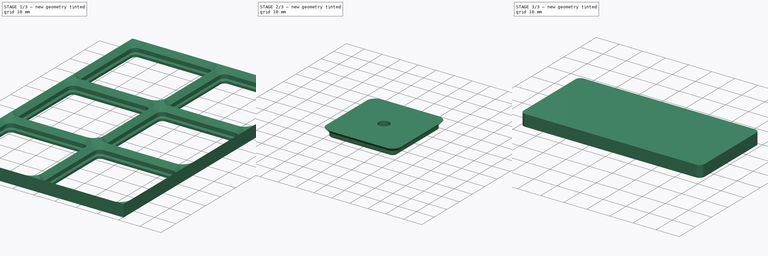
[diagram: build sequence overview — one tinted view per stage of 3, left to right]
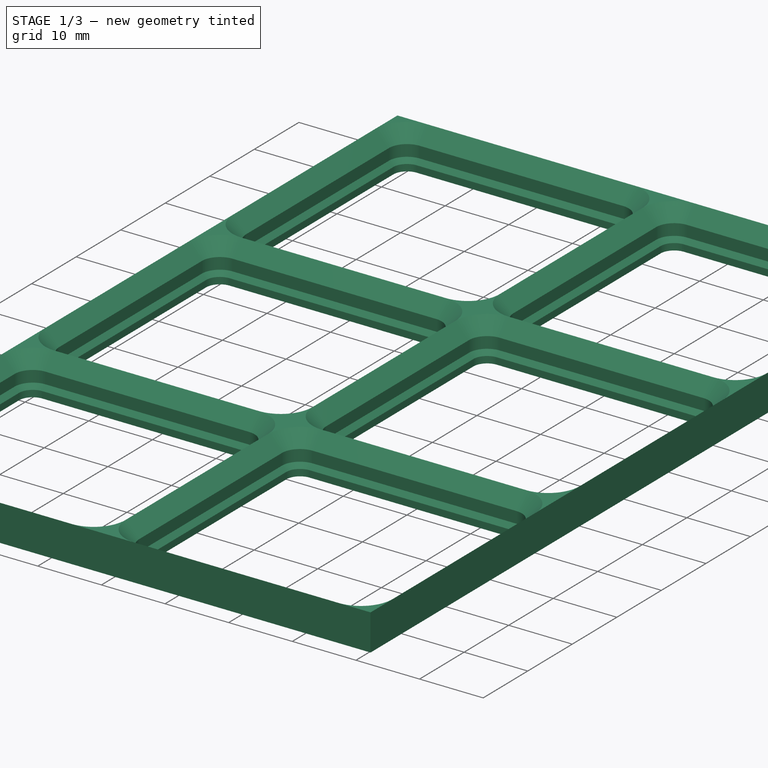
[diagram: stage 1 of 3 — iso view after this stage's code; geometry added in this stage tinted green]
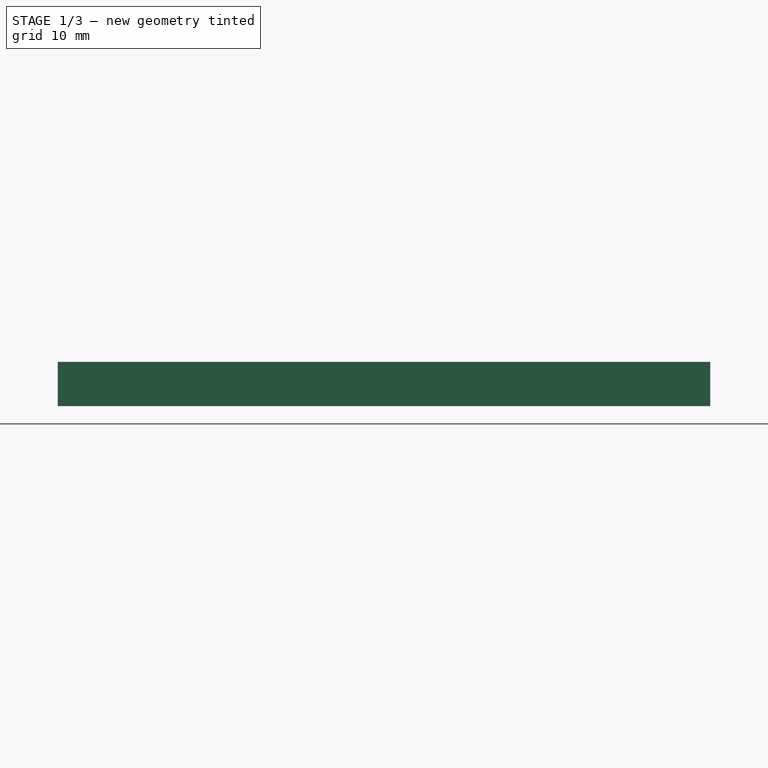
[diagram: stage 1 of 3 — front view after this stage's code; geometry added in this stage tinted green]
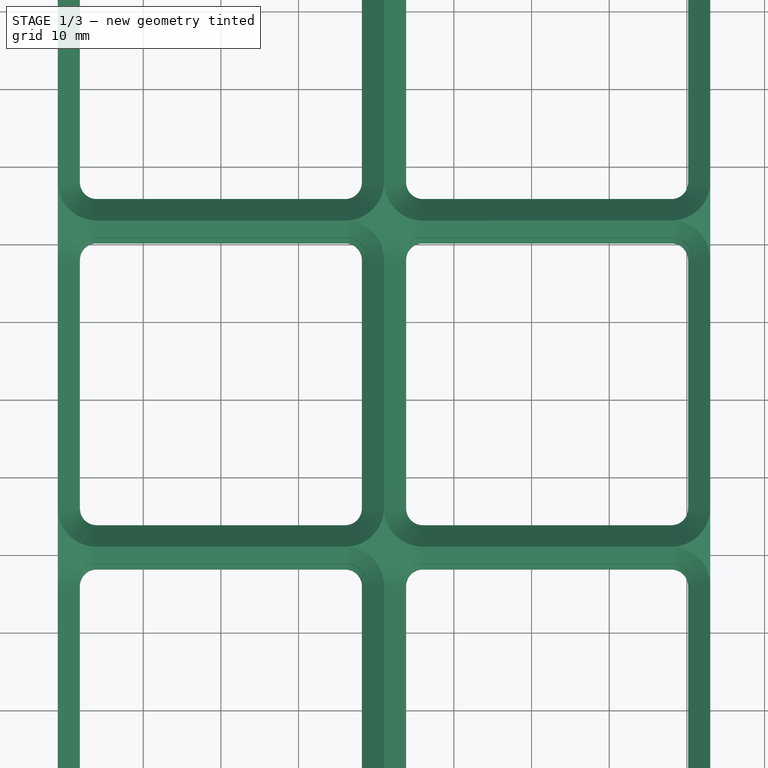
[diagram: stage 1 of 3 — top view after this stage's code; geometry added in this stage tinted green]
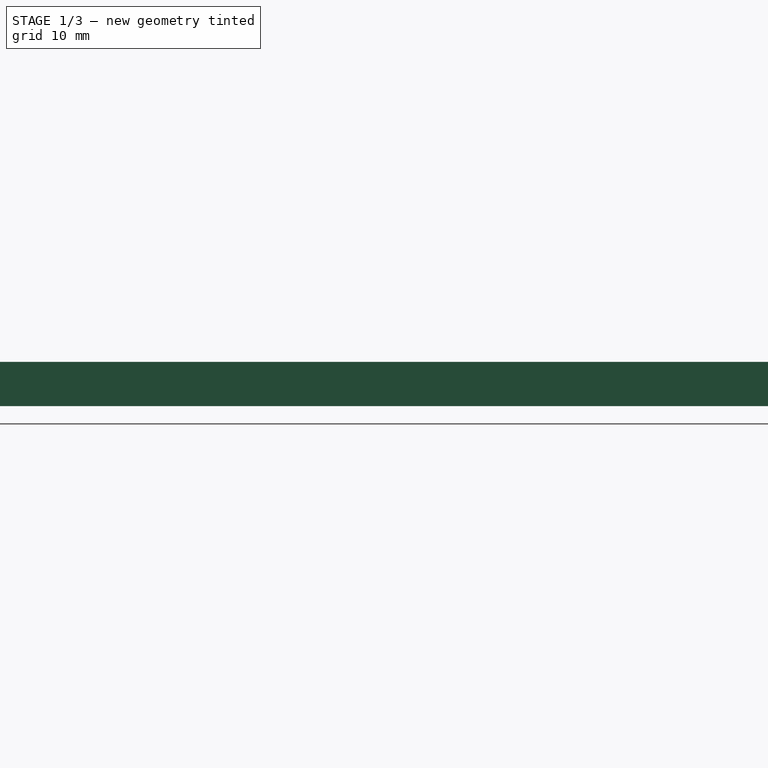
[diagram: stage 1 of 3 — right view after this stage's code; geometry added in this stage tinted green]
FCSTD DOCUMENT  (FreeCAD 1.0R38806 (Git))
Label: Test32
License: All rights reserved
LicenseURL: http://en.wikipedia.org/wiki/All_rights_reserved
objects: Sketcher::SketchObject×9, PartDesign::SubShapeBinder×6, PartDesign::LinearPattern×4, PartDesign::Body×4, PartDesign::Pad×3, PartDesign::MultiTransform×2, PartDesign::AdditivePipe×2, App::VarSet×1, PartDesign::SubtractivePipe×1, App::Part×1
note: 58 computed .brp shape members not serialized (recipe doc carries the construction recipe); baked Part::Feature solids carry a one-line shape summary decoded from their .brp

FEATURE [App::VarSet] VarSet
FEATURE [Sketcher::SketchObject] Sketch
  ArcFitTolerance = 1e-06
  AttachmentSupport = -> [XZ_Plane001]
  FullyConstrained = true
  MakeInternals = false
  MapMode = 5
  Placement = pos=(0,0,0) rot=(1,0,0;1.5708rad)
  sketch-geometry (5):
    g0: LineSegment StartX=-21 StartY=0 StartZ=0 EndX=-18.85 EndY=-2.15 EndZ=0
    g1: LineSegment StartX=-18.85 StartY=-2.15 StartZ=0 EndX=-18.85 EndY=-3.95 EndZ=0
    g2: LineSegment StartX=-18.85 StartY=-3.95 StartZ=0 EndX=-18.15 EndY=-4.65 EndZ=0
    g3: LineSegment StartX=-18.15 StartY=-4.65 StartZ=0 EndX=-18.15 EndY=0 EndZ=0
    g4: LineSegment StartX=-18.15 StartY=0 StartZ=0 EndX=-21 EndY=0 EndZ=0
  constraints (16):
    c: Coincident(g0,g1)
    c: Vertical(g1)
    c: Coincident(g1,g2)
    c: Coincident(g2,g3)
    c: Vertical(g3)
    c: Coincident(g3,g4)
    c: Coincident(g4,g0)
    c: Horizontal(g4)
    c: Parallel(g0,g2)
    c: Angle(g0,g4) = 0.785398
    c: DistanceY(g0,g0) = 2.15
    c: DistanceY(g1,g0) = 1.8
    c: DistanceY(g2,g1) = 0.7
    c: DistanceX(g0,g-1) = 21
    c: PointOnObject(g0,g-1)
    c: DistanceY(g2,g3) = 4.65
FEATURE [Sketcher::SketchObject] Sketch001
  ArcFitTolerance = 1e-06
  AttachmentSupport = -> [XY_Plane001]
  ExternalGeometry = -> [Sketch]
  FullyConstrained = true
  MakeInternals = false
  MapMode = 5
  sketch-geometry (10):
    g0: LineSegment StartX=-16 StartY=-21 StartZ=0 EndX=16 EndY=-21 EndZ=0
    g1: LineSegment StartX=21 StartY=-16 StartZ=0 EndX=21 EndY=16 EndZ=0
    g2: LineSegment StartX=16 StartY=21 StartZ=0 EndX=-16 EndY=21 EndZ=0
    g3: LineSegment StartX=-21 StartY=16 StartZ=0 EndX=-21 EndY=-16 EndZ=0
    g4: ArcOfCircle CenterX=-16 CenterY=-16 CenterZ=0 NormalX=0 NormalY=0 NormalZ=1 AngleXU=0 Radius=5 StartAngle=3.14159 EndAngle=4.71239
    g5: ArcOfCircle CenterX=16 CenterY=-16 CenterZ=0 NormalX=0 NormalY=0 NormalZ=1 AngleXU=0 Radius=5 StartAngle=4.71239 EndAngle=6.28319
    g6: ArcOfCircle CenterX=16 CenterY=16 CenterZ=0 NormalX=0 NormalY=0 NormalZ=1 AngleXU=0 Radius=5 StartAngle=0 EndAngle=1.5708
    g7: ArcOfCircle CenterX=-16 CenterY=16 CenterZ=0 NormalX=0 NormalY=0 NormalZ=1 AngleXU=0 Radius=5 StartAngle=1.5708 EndAngle=3.14159
    g8: GeomPoint [constr] X=21 Y=21 Z=0
    g9: GeomPoint [constr] X=0 Y=0 Z=0
  constraints (22):
    c: Tangent(g0,g4) = -1.5708
    c: Tangent(g0,g5) = -1.5708
    c: Tangent(g1,g5) = -1.5708
    c: Tangent(g1,g6) = -1.5708
    c: Tangent(g2,g6) = -1.5708
    c: Tangent(g2,g7) = -1.5708
    c: Tangent(g3,g7) = -1.5708
    c: Tangent(g3,g4) = -1.5708
    c: Horizontal(g0)
    c: Horizontal(g2)
    c: Vertical(g1)
    c: Vertical(g3)
    c: Equal(g4,g5)
    c: Equal(g5,g6)
    c: Equal(g6,g7)
    c: Symmetric(g2,g0,g9)
    c: PointOnObject(g8,g1)
    c: PointOnObject(g8,g2)
    c: Coincident(g9,g-1)
    c: Radius(g7) = 5
    c: Equal(g2,g3)
    c: PointOnObject(g-3,g3)
FEATURE [Sketcher::SketchObject] Sketch002
  ArcFitTolerance = 1e-06
  AttachmentSupport = -> [XY_Plane001]
  ExternalGeometry = -> [Sketch001,Sketch]
  FullyConstrained = true
  MakeInternals = false
  MapMode = 5
  sketch-geometry (15):
    g0: LineSegment StartX=-21 StartY=-21 StartZ=0 EndX=21 EndY=-21 EndZ=0
    g1: LineSegment StartX=21 StartY=-21 StartZ=0 EndX=21 EndY=21 EndZ=0
    g2: LineSegment StartX=21 StartY=21 StartZ=0 EndX=-21 EndY=21 EndZ=0
    g3: LineSegment StartX=-21 StartY=21 StartZ=0 EndX=-21 EndY=-21 EndZ=0
    g4: GeomPoint [constr] X=0 Y=0 Z=0
    g5: LineSegment StartX=-16 StartY=-18.15 StartZ=0 EndX=16 EndY=-18.15 EndZ=0
    g6: LineSegment StartX=18.15 StartY=-16 StartZ=0 EndX=18.15 EndY=16 EndZ=0
    g7: LineSegment StartX=16 StartY=18.15 StartZ=0 EndX=-16 EndY=18.15 EndZ=0
    g8: LineSegment StartX=-18.15 StartY=16 StartZ=0 EndX=-18.15 EndY=-16 EndZ=0
    g9: ArcOfCircle CenterX=-16 CenterY=-16 CenterZ=0 NormalX=0 NormalY=0 NormalZ=1 AngleXU=0 Radius=2.15 StartAngle=3.14159 EndAngle=4.71239
    g10: ArcOfCircle CenterX=16 CenterY=-16 CenterZ=0 NormalX=0 NormalY=0 NormalZ=1 AngleXU=0 Radius=2.15 StartAngle=4.71239 EndAngle=6.28319
    g11: ArcOfCircle CenterX=16 CenterY=16 CenterZ=0 NormalX=0 NormalY=0 NormalZ=1 AngleXU=0 Radius=2.15 StartAngle=2e-16 EndAngle=1.5708
    g12: ArcOfCircle CenterX=-16 CenterY=16 CenterZ=0 NormalX=0 NormalY=0 NormalZ=1 AngleXU=0 Radius=2.15 StartAngle=1.5708 EndAngle=3.14159
    g13: GeomPoint [constr] X=18.15 Y=18.15 Z=0
    g14: GeomPoint [constr] X=0 Y=0 Z=0
  constraints (33):
    c: Coincident(g0,g1)
    c: Coincident(g1,g2)
    c: Coincident(g2,g3)
    c: Coincident(g3,g0)
    c: Horizontal(g0)
    c: Horizontal(g2)
    c: Vertical(g1)
    c: Vertical(g3)
    c: Symmetric(g2,g0,g4)
    c: Coincident(g4,g-1)
    c: Equal(g2,g3)
    c: Tangent(g5,g9) = -1.5708
    c: Tangent(g5,g10) = -1.5708
    c: Tangent(g6,g10) = -1.5708
    c: Tangent(g6,g11) = -1.5708
    c: Tangent(g7,g11) = -1.5708
    c: Tangent(g7,g12) = -1.5708
    c: Tangent(g8,g12) = -1.5708
    c: Tangent(g8,g9) = -1.5708
    c: Horizontal(g5)
    c: Horizontal(g7)
    c: Vertical(g6)
    c: Vertical(g8)
    c: Equal(g9,g10)
    c: Equal(g10,g11)
    c: Equal(g11,g12)
    c: Symmetric(g7,g5,g14)
    c: PointOnObject(g13,g6)
    c: PointOnObject(g13,g7)
    c: Coincident(g14,g4)
    c: Coincident(g12,g-3)
    c: PointOnObject(g-4,g8)
    c: PointOnObject(g-4,g3)
FEATURE [PartDesign::Pad] Pad
  Direction = (0,0,1)
  Length = 5.7
  Length2 = 10
  Profile = -> Sketch002
  ReferenceAxis = -> Sketch002 [N_Axis]
  Refine = true
  Reversed = true
  Suppressed = false
  Type = 0
FEATURE [PartDesign::SubtractivePipe] SubtractivePipe
  AuxilleryCurvelinear = true
  AuxillerySpineTangent = false
  BaseFeature = -> Pad
  Binormal = (0,0,0)
  Mode = 0
  Profile = -> Sketch
  Refine = true
  Spine = -> Sketch001
  SpineTangent = false
  Suppressed = false
  Transformation = 0
  Transition = 0
FEATURE [PartDesign::LinearPattern] LinearPattern
  Direction = -> X_Axis001
  Length = 42
  Mode = 1
  Occurrences = 2
  Offset = 42
  Refine = true
  Suppressed = false
  TransformMode = 0
FEATURE [PartDesign::LinearPattern] LinearPattern001
  Direction = -> Y_Axis001
  Length = 84
  Mode = 1
  Occurrences = 3
  Offset = 42
  Refine = true
  Suppressed = false
  TransformMode = 0
FEATURE [PartDesign::MultiTransform] MultiTransform
  BaseFeature = -> SubtractivePipe
  Originals = -> [Pad,SubtractivePipe]
  Refine = true
  Suppressed = false
  TransformMode = 0
  Transformations = -> [LinearPattern,LinearPattern001]
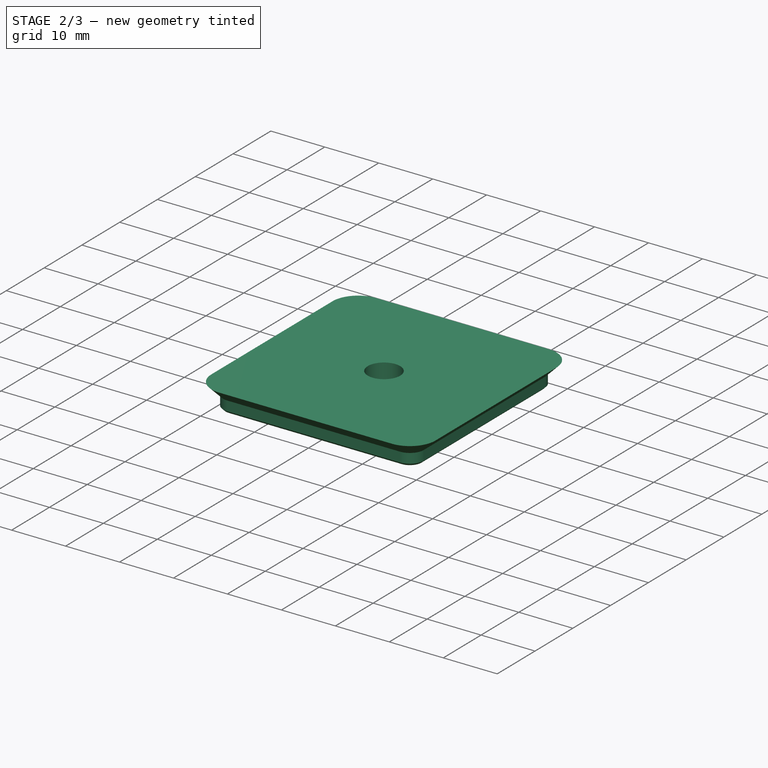
[diagram: stage 2 of 3 — iso view after this stage's code; geometry added in this stage tinted green]
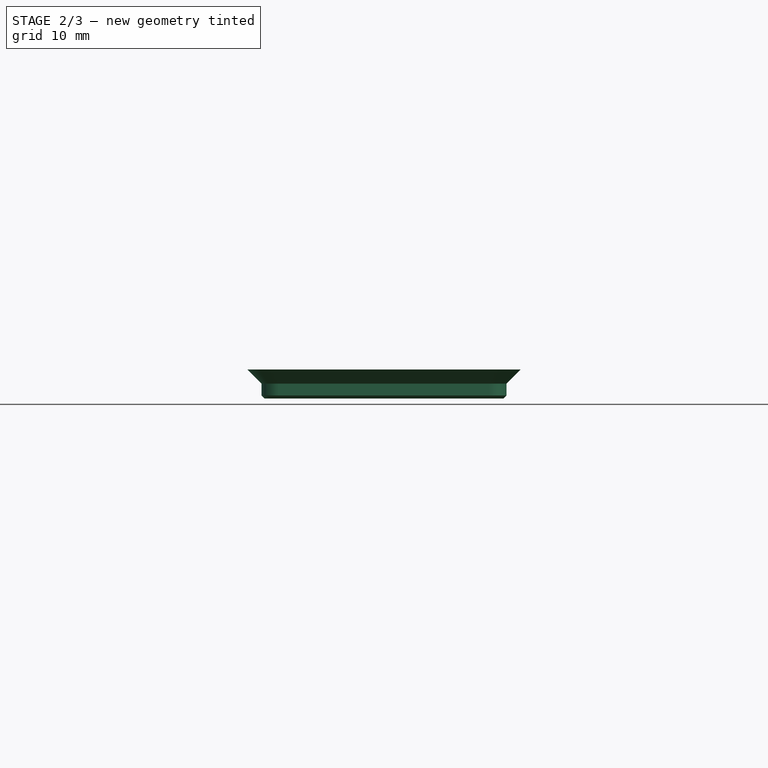
[diagram: stage 2 of 3 — front view after this stage's code; geometry added in this stage tinted green]
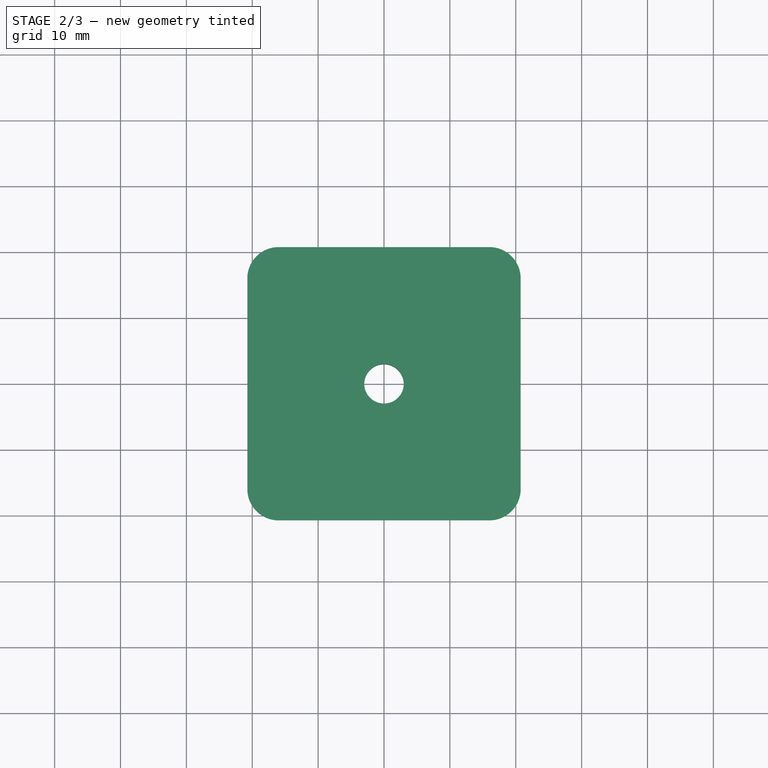
[diagram: stage 2 of 3 — top view after this stage's code; geometry added in this stage tinted green]
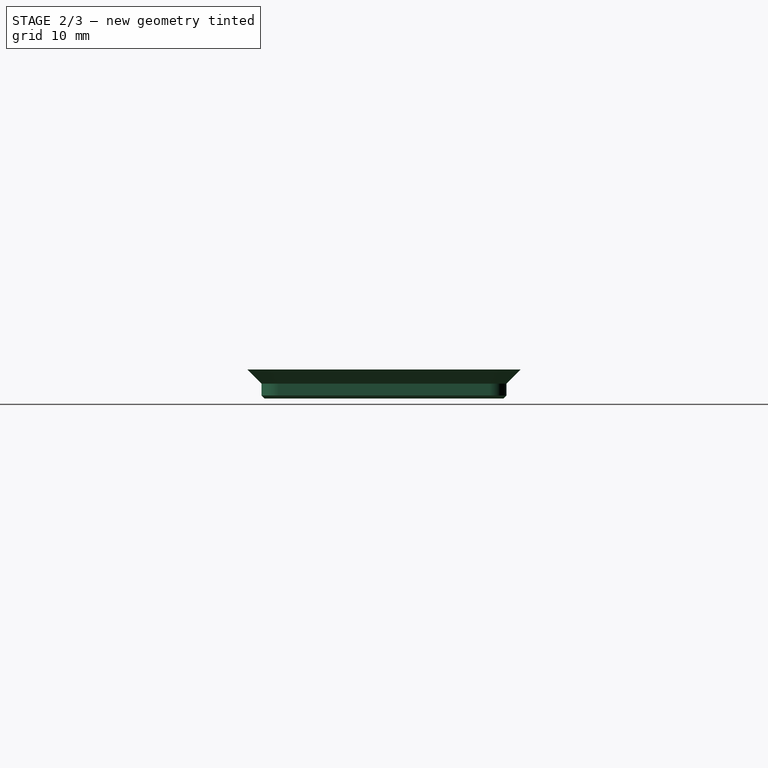
[diagram: stage 2 of 3 — right view after this stage's code; geometry added in this stage tinted green]
FEATURE [PartDesign::Body] Body
  AllowCompound = true
  Group = -> [Sketch,Sketch001,Sketch002,Pad,SubtractivePipe,MultiTransform,LinearPattern,LinearPattern001]
  Origin = -> Origin001
  Tip = -> MultiTransform
FEATURE [PartDesign::SubShapeBinder] Binder
  BindCopyOnChange = 0
  BindMode = 0
  ClaimChildren = false
  Context = -> Part [Body001.Binder.]
  Fuse = false
  MakeFace = true
  OffsetFill = false
  OffsetIntersection = false
  OffsetJoinType = 0
  OffsetOpenResult = false
  PartialLoad = false
  Refine = true
  Relative = true
  Support = -> [Body[Sketch.]]
  _Version = 2
FEATURE [Sketcher::SketchObject] Sketch003
  ArcFitTolerance = 1e-06
  AttachmentSupport = -> [XZ_Plane002]
  ExternalGeometry = -> [Binder]
  FullyConstrained = true
  MakeInternals = false
  MapMode = 5
  Placement = pos=(0,0,0) rot=(1,0,0;1.5708rad)
  sketch-geometry (7):
    g0: LineSegment StartX=-20.75 StartY=0 StartZ=0 EndX=-18.6 EndY=-2.15 EndZ=0
    g1: LineSegment StartX=-18.6 StartY=-2.15 StartZ=0 EndX=-18.6 EndY=-3.95 EndZ=0
    g2: LineSegment StartX=-18.6 StartY=-3.95 StartZ=0 EndX=-18.15 EndY=-4.4 EndZ=0
    g3: LineSegment StartX=-18.15 StartY=-4.4 StartZ=0 EndX=-18.15 EndY=0 EndZ=0
    g4: LineSegment StartX=-18.15 StartY=0 StartZ=0 EndX=-20.75 EndY=0 EndZ=0
    g5: LineSegment [constr] StartX=-20.75 StartY=0 StartZ=0 EndX=-20.75 EndY=-0.25 EndZ=0
    g6: LineSegment [constr] StartX=-18.85 StartY=-2.15 StartZ=0 EndX=-18.85 EndY=-3.95 EndZ=0
  constraints (23):
    c: Coincident(g0,g1)
    c: Vertical(g1)
    c: Coincident(g1,g2)
    c: Coincident(g2,g3)
    c: Vertical(g3)
    c: Coincident(g3,g4)
    c: Coincident(g4,g0)
    c: Horizontal(g4)
    c: Parallel(g0,g2)
    c: Angle(g0,g4) = 0.785398
    c: DistanceY(g0,g0) = 2.15
    c: DistanceY(g1,g0) = 1.8
    c: PointOnObject(g0,g-1)
    c: DistanceX(g-3,g0) = 0.25
    c: Coincident(g5,g0)
    c: PointOnObject(g5,g-3)
    c: Vertical(g5)
    c: DistanceY(g5,g0) = 0.25
    c: DistanceY(g2,g-4) = -0.25
    c: DistanceY(g2,g1) = 0.45
    c: Coincident(g6,g-3)
    c: Coincident(g6,g-4)
    c: DistanceY(g2,g3) = 4.4
FEATURE [Sketcher::SketchObject] Sketch004
  ArcFitTolerance = 1e-06
  AttachmentSupport = -> [XY_Plane002]
  ExternalGeometry = -> [Sketch003]
  FullyConstrained = true
  MakeInternals = false
  MapMode = 5
  sketch-geometry (10):
    g0: LineSegment StartX=-16 StartY=-20.75 StartZ=0 EndX=16 EndY=-20.75 EndZ=0
    g1: LineSegment StartX=20.75 StartY=-16 StartZ=0 EndX=20.75 EndY=16 EndZ=0
    g2: LineSegment StartX=16 StartY=20.75 StartZ=0 EndX=-16 EndY=20.75 EndZ=0
    g3: LineSegment StartX=-20.75 StartY=16 StartZ=0 EndX=-20.75 EndY=-16 EndZ=0
    g4: ArcOfCircle CenterX=-16 CenterY=-16 CenterZ=0 NormalX=0 NormalY=0 NormalZ=1 AngleXU=0 Radius=4.75 StartAngle=3.14159 EndAngle=4.71239
    g5: ArcOfCircle CenterX=16 CenterY=-16 CenterZ=0 NormalX=0 NormalY=0 NormalZ=1 AngleXU=0 Radius=4.75 StartAngle=4.71239 EndAngle=6.28319
    g6: ArcOfCircle CenterX=16 CenterY=16 CenterZ=0 NormalX=0 NormalY=0 NormalZ=1 AngleXU=0 Radius=4.75 StartAngle=0 EndAngle=1.5708
    g7: ArcOfCircle CenterX=-16 CenterY=16 CenterZ=0 NormalX=0 NormalY=0 NormalZ=1 AngleXU=0 Radius=4.75 StartAngle=1.5708 EndAngle=3.14159
    g8: GeomPoint [constr] X=20.75 Y=20.75 Z=0
    g9: GeomPoint [constr] X=0 Y=0 Z=0
  constraints (23):
    c: Tangent(g0,g4) = -1.5708
    c: Tangent(g0,g5) = -1.5708
    c: Tangent(g1,g5) = -1.5708
    c: Tangent(g1,g6) = -1.5708
    c: Tangent(g2,g6) = -1.5708
    c: Tangent(g2,g7) = -1.5708
    c: Tangent(g3,g7) = -1.5708
    c: Tangent(g3,g4) = -1.5708
    c: Horizontal(g0)
    c: Horizontal(g2)
    c: Vertical(g1)
    c: Vertical(g3)
    c: Equal(g4,g5)
    c: Equal(g5,g6)
    c: Equal(g6,g7)
    c: Symmetric(g2,g0,g9)
    c: PointOnObject(g8,g1)
    c: PointOnObject(g8,g2)
    c: Coincident(g9,g-1)
    c: PointOnObject(g-3,g3)
    c: Radius(g4) = 4.75
    c: Equal(g3,g0)
    c: DistanceX(g-3,g9) = 20.75
FEATURE [PartDesign::AdditivePipe] AdditivePipe
  AuxilleryCurvelinear = true
  AuxillerySpineTangent = false
  Binormal = (0,0,0)
  Mode = 0
  Placement = pos=(0,0,0) rot=(1,0,0;1.5708rad)
  Profile = -> Sketch003
  Refine = true
  Spine = -> Sketch004
  SpineTangent = false
  Suppressed = false
  Transformation = 0
  Transition = 0
FEATURE [Sketcher::SketchObject] Sketch005
  ArcFitTolerance = 1e-06
  AttachmentSupport = -> [XY_Plane002]
  ExternalGeometry = -> [AdditivePipe]
  FullyConstrained = true
  MakeInternals = false
  MapMode = 5
  sketch-geometry (11):
    g0: LineSegment StartX=-16 StartY=-18.15 StartZ=0 EndX=16 EndY=-18.15 EndZ=0
    g1: LineSegment StartX=18.15 StartY=-16 StartZ=0 EndX=18.15 EndY=16 EndZ=0
    g2: LineSegment StartX=16 StartY=18.15 StartZ=0 EndX=-16 EndY=18.15 EndZ=0
    g3: LineSegment StartX=-18.15 StartY=16 StartZ=0 EndX=-18.15 EndY=-16 EndZ=0
    g4: ArcOfCircle CenterX=-16 CenterY=-16 CenterZ=0 NormalX=0 NormalY=0 NormalZ=1 AngleXU=0 Radius=2.15 StartAngle=3.14159 EndAngle=4.71239
    g5: ArcOfCircle CenterX=16 CenterY=-16 CenterZ=0 NormalX=0 NormalY=0 NormalZ=1 AngleXU=0 Radius=2.15 StartAngle=4.71239 EndAngle=6.28319
    g6: ArcOfCircle CenterX=16 CenterY=16 CenterZ=0 NormalX=0 NormalY=0 NormalZ=1 AngleXU=0 Radius=2.15 StartAngle=3e-16 EndAngle=1.5708
    g7: ArcOfCircle CenterX=-16 CenterY=16 CenterZ=0 NormalX=0 NormalY=0 NormalZ=1 AngleXU=0 Radius=2.15 StartAngle=1.5708 EndAngle=3.14159
    g8: GeomPoint [constr] X=18.15 Y=18.15 Z=0
    g9: GeomPoint [constr] X=0 Y=0 Z=0
    g10: Circle CenterX=0 CenterY=0 CenterZ=0 NormalX=0 NormalY=0 NormalZ=1 AngleXU=0 Radius=3
  constraints (22):
    c: Tangent(g0,g4) = -1.5708
    c: Tangent(g0,g5) = -1.5708
    c: Tangent(g1,g5) = -1.5708
    c: Tangent(g1,g6) = -1.5708
    c: Tangent(g2,g6) = -1.5708
    c: Tangent(g2,g7) = -1.5708
    c: Tangent(g3,g7) = -1.5708
    c: Tangent(g3,g4) = -1.5708
    c: Horizontal(g0)
    c: Vertical(g1)
    c: Vertical(g3)
    c: Equal(g4,g5)
    c: Equal(g5,g6)
    c: Equal(g6,g7)
    c: Symmetric(g2,g0,g9)
    c: PointOnObject(g8,g1)
    c: PointOnObject(g8,g2)
    c: Coincident(g9,g-1)
    c: Coincident(g7,g-3)
    c: Coincident(g2,g-3)
    c: Coincident(g10,g9)
    c: Diameter(g10) = 6
FEATURE [PartDesign::Pad] Pad001
  BaseFeature = -> AdditivePipe
  Direction = (0,0,1)
  Length = 4.4
  Length2 = 10
  Placement = pos=(0,0,0) rot=(1,0,0;1.5708rad)
  Profile = -> Sketch005
  ReferenceAxis = -> Sketch005 [N_Axis]
  Refine = true
  Reversed = true
  Suppressed = false
  Type = 0
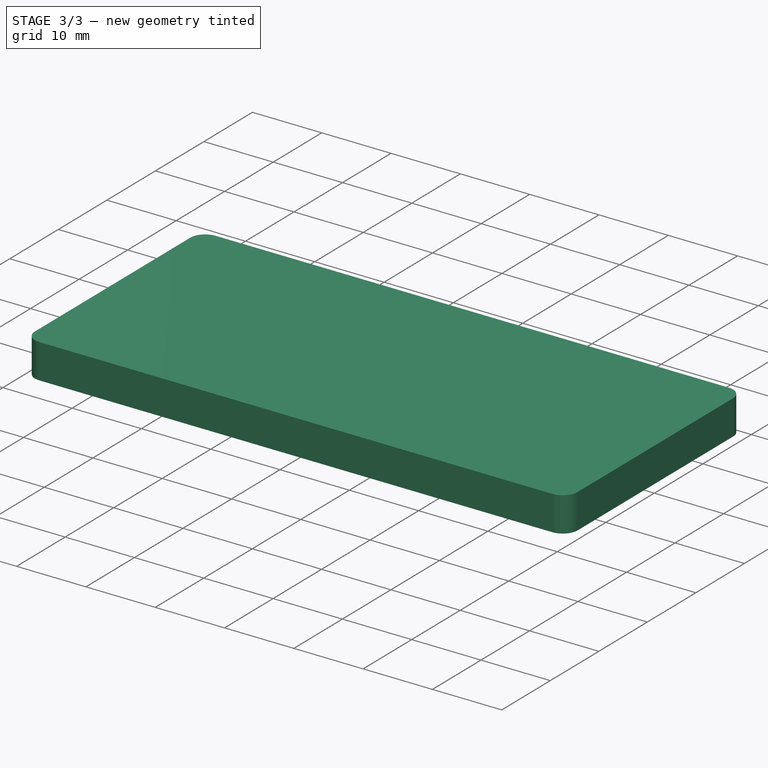
[diagram: stage 3 of 3 — iso view after this stage's code; geometry added in this stage tinted green]
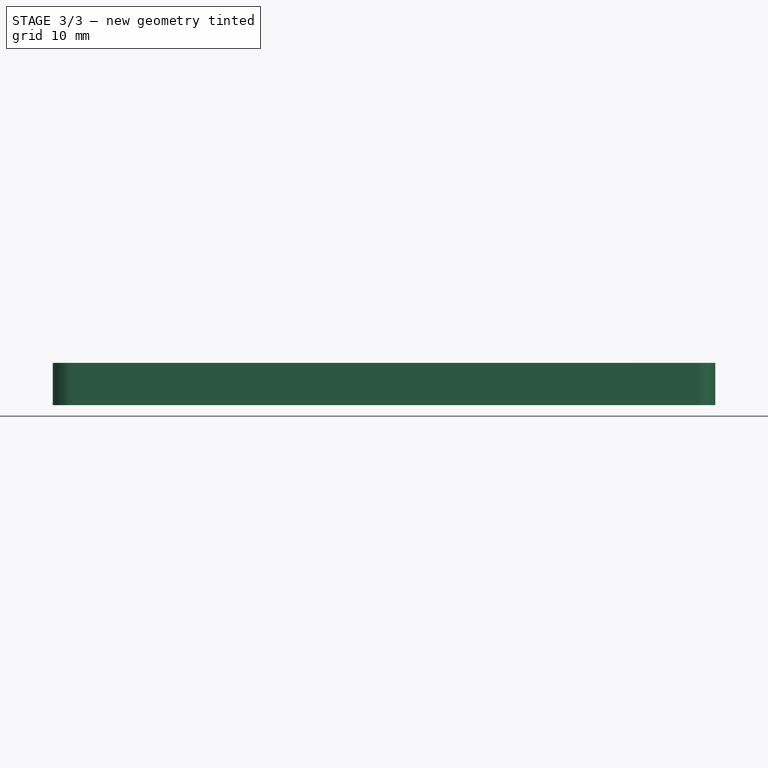
[diagram: stage 3 of 3 — front view after this stage's code; geometry added in this stage tinted green]
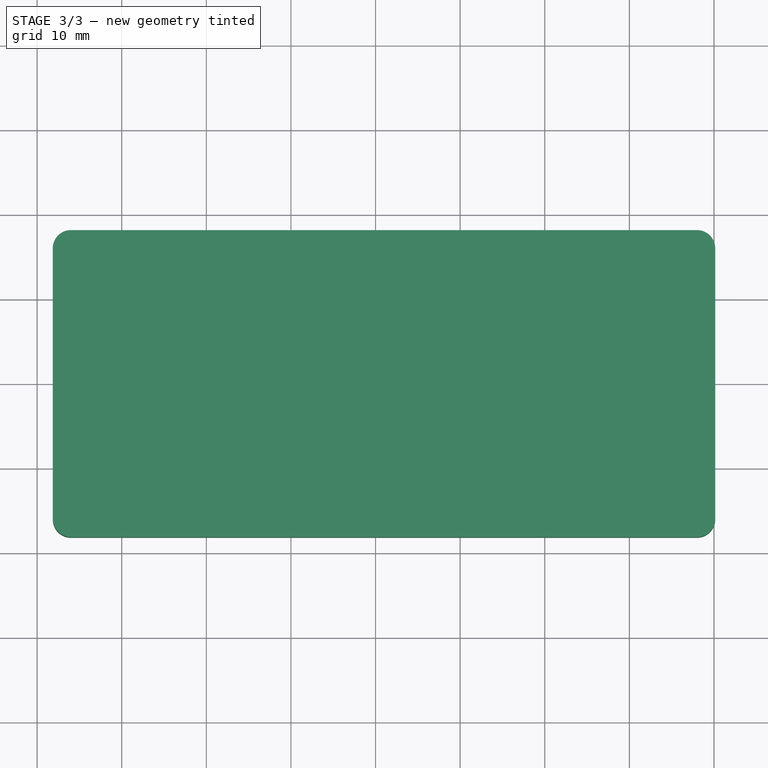
[diagram: stage 3 of 3 — top view after this stage's code; geometry added in this stage tinted green]
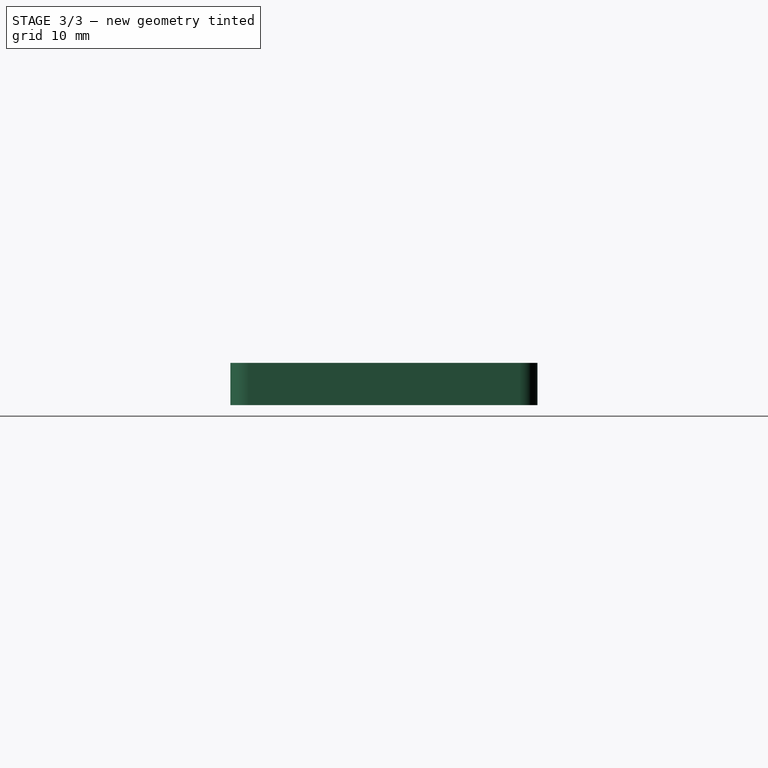
[diagram: stage 3 of 3 — right view after this stage's code; geometry added in this stage tinted green]
FEATURE [PartDesign::LinearPattern] LinearPattern002
  Direction = -> X_Axis002
  Length = 42
  Mode = 1
  Occurrences = 2
  Offset = 42
  Placement = pos=(0,0,0) rot=(1,0,0;1.5708rad)
  Refine = true
  Suppressed = false
  TransformMode = 0
FEATURE [PartDesign::LinearPattern] LinearPattern003
  Direction = -> Y_Axis002
  Length = 0
  Mode = 1
  Occurrences = 1
  Offset = 42
  Placement = pos=(0,0,0) rot=(1,0,0;1.5708rad)
  Refine = true
  Suppressed = false
  TransformMode = 0
FEATURE [PartDesign::MultiTransform] MultiTransform001
  BaseFeature = -> Pad001
  Originals = -> [AdditivePipe,Pad001]
  Placement = pos=(0,0,0) rot=(1,0,0;1.5708rad)
  Refine = true
  Suppressed = false
  TransformMode = 0
  Transformations = -> [LinearPattern002,LinearPattern003]
FEATURE [PartDesign::Body] Body001
  AllowCompound = true
  Group = -> [Binder,Sketch003,Sketch004,AdditivePipe,Sketch005,Pad001,MultiTransform001,LinearPattern002,LinearPattern003]
  Origin = -> Origin002
  Tip = -> MultiTransform001
FEATURE [PartDesign::SubShapeBinder] Binder001
  BindCopyOnChange = 0
  BindMode = 0
  ClaimChildren = false
  Context = -> Part [Body002.Binder001.]
  Fuse = false
  MakeFace = true
  OffsetFill = false
  OffsetIntersection = false
  OffsetJoinType = 0
  OffsetOpenResult = false
  PartialLoad = false
  Refine = true
  Relative = true
  Support = -> [Body001[Sketch003.]]
  _Version = 2
FEATURE [PartDesign::SubShapeBinder] Binder002
  BindCopyOnChange = 0
  BindMode = 0
  ClaimChildren = false
  Context = -> Part [Body002.Binder002.]
  Fuse = false
  MakeFace = true
  OffsetFill = false
  OffsetIntersection = false
  OffsetJoinType = 0
  OffsetOpenResult = false
  PartialLoad = false
  Refine = true
  Relative = true
  Support = -> [Body001[Sketch004.]]
  _Version = 2
FEATURE [Sketcher::SketchObject] Sketch006
  ArcFitTolerance = 1e-06
  AttachmentSupport = -> [XY_Plane003]
  ExternalGeometry = -> [Binder002]
  FullyConstrained = true
  MakeInternals = false
  MapMode = 5
  expr: Constraints[20] = 42 mm * 2 - 2 * 0.25 mm
  expr: Constraints[21] = 42 mm - 2 * 0.25 mm
  sketch-geometry (10):
    g0: LineSegment StartX=58 StartY=20.75 StartZ=0 EndX=-16 EndY=20.75 EndZ=0
    g1: LineSegment StartX=-20.75 StartY=16 StartZ=0 EndX=-20.75 EndY=-16 EndZ=0
    g2: LineSegment StartX=-16 StartY=-20.75 StartZ=0 EndX=58 EndY=-20.75 EndZ=0
    g3: LineSegment StartX=62.75 StartY=-16 StartZ=0 EndX=62.75 EndY=16 EndZ=0
    g4: ArcOfCircle CenterX=58 CenterY=16 CenterZ=0 NormalX=0 NormalY=0 NormalZ=1 AngleXU=0 Radius=4.75 StartAngle=2e-16 EndAngle=1.5708
    g5: ArcOfCircle CenterX=-16 CenterY=16 CenterZ=0 NormalX=0 NormalY=0 NormalZ=1 AngleXU=0 Radius=4.75 StartAngle=1.5708 EndAngle=3.14159
    g6: ArcOfCircle CenterX=-16 CenterY=-16 CenterZ=0 NormalX=0 NormalY=0 NormalZ=1 AngleXU=0 Radius=4.75 StartAngle=3.14159 EndAngle=4.71239
    g7: ArcOfCircle CenterX=58 CenterY=-16 CenterZ=0 NormalX=0 NormalY=0 NormalZ=1 AngleXU=0 Radius=4.75 StartAngle=4.71239 EndAngle=6.28319
    g8: GeomPoint [constr] X=62.75 Y=20.75 Z=0
    g9: GeomPoint [constr] X=-20.75 Y=-20.75 Z=0
  constraints (22):
    c: Tangent(g0,g4) = -1.5708
    c: Tangent(g0,g5) = -1.5708
    c: Tangent(g1,g5) = -1.5708
    c: Tangent(g1,g6) = -1.5708
    c: Tangent(g2,g6) = -1.5708
    c: Tangent(g2,g7) = -1.5708
    c: Tangent(g3,g7) = -1.5708
    c: Tangent(g3,g4) = -1.5708
    c: Horizontal(g0)
    c: Vertical(g1)
    c: Vertical(g3)
    c: Equal(g4,g5)
    c: Equal(g5,g6)
    c: Equal(g6,g7)
    c: PointOnObject(g8,g0)
    c: PointOnObject(g8,g3)
    c: PointOnObject(g9,g1)
    c: PointOnObject(g9,g2)
    c: Coincident(g6,g-3)
    c: Coincident(g2,g-3)
    c: DistanceX(g1,g3) = 83.5
    c: DistanceY(g2,g0) = 41.5
FEATURE [PartDesign::SubShapeBinder] Binder003
  BindCopyOnChange = 0
  BindMode = 0
  ClaimChildren = false
  Context = -> Part [Body002.Binder003.]
  Fuse = false
  MakeFace = true
  OffsetFill = false
  OffsetIntersection = false
  OffsetJoinType = 0
  OffsetOpenResult = false
  PartialLoad = false
  Refine = true
  Relative = true
  Support = -> [Body[Sketch002.]]
  _Version = 2
FEATURE [Sketcher::SketchObject] Sketch007
  ArcFitTolerance = 1e-06
  AttachmentSupport = -> [XZ_Plane003]
  ExternalGeometry = -> [Binder003,Binder001]
  FullyConstrained = false
  MakeInternals = false
  MapMode = 5
  Placement = pos=(0,0,0) rot=(1,0,0;1.5708rad)
  sketch-geometry (10):
    g0: LineSegment [constr] StartX=-21 StartY=21.25 StartZ=0 EndX=-18.85 EndY=19.1 EndZ=0
    g1: LineSegment StartX=-18.85 StartY=19.1 StartZ=0 EndX=-18.85 EndY=17.3 EndZ=0
    g2: LineSegment StartX=-18.85 StartY=17.3 StartZ=0 EndX=-18.15 EndY=16.6 EndZ=0
    g3: LineSegment [constr] StartX=-21 StartY=0 StartZ=0 EndX=-21 EndY=21.25 EndZ=0
    g4: LineSegment StartX=-18.15 StartY=0 StartZ=0 EndX=-18.15 EndY=16.6 EndZ=0
    g5: LineSegment StartX=-20.75 StartY=0 StartZ=0 EndX=-20.75 EndY=19.7929 EndZ=0
    g6: LineSegment StartX=-19.8964 StartY=20.1464 StartZ=0 EndX=-18.85 EndY=19.1 EndZ=0
    g7: ArcOfCircle CenterX=-20.25 CenterY=19.7929 CenterZ=0 NormalX=0 NormalY=0 NormalZ=1 AngleXU=0 Radius=0.5 StartAngle=0.785398 EndAngle=3.14159
    g8: GeomPoint [constr] X=-20.75 Y=21 Z=0
    g9: LineSegment StartX=-20.75 StartY=0 StartZ=0 EndX=-18.15 EndY=0 EndZ=0
  constraints (29):
    c: Parallel(g0,g-5)
    c: DistanceY(g0,g0) = 2.15
    c: Coincident(g0,g1)
    c: Vertical(g1)
    c: Coincident(g1,g2)
    c: Parallel(g2,g0)
    c: DistanceY(g2,g1) = 0.7
    c: DistanceY(g1,g0) = 1.8
    c: Coincident(g3,g-3)
    c: Coincident(g3,g0)
    c: Vertical(g3)
    c: Coincident(g4,g-4)
    c: Coincident(g4,g2)
    c: Coincident(g-5,g5)
    c: PointOnObject(g8,g0)
    c: Vertical(g5)
    c: Coincident(g6,g0)
    c: PointOnObject(g8,g6)
    c: PointOnObject(g8,g5)
    c: Tangent(g6,g7) = 1.5708
    c: Tangent(g5,g7) = 1.5708
    c: Radius(g7) = 0.5
    c: DistanceY(g-7,g2) = 21
    c: Coincident(g9,g4)
    c: PointOnObject(g9,g5)
    c: DistanceX(g0,g5) = 0.25
    c: Angle(g3,g0) = 0.785398
    c: DistanceX(g9,g-1) = 20.75
    c: DistanceX(g3,g9) = 0.25
FEATURE [PartDesign::AdditivePipe] AdditivePipe001
  AuxilleryCurvelinear = true
  AuxillerySpineTangent = false
  Binormal = (0,0,0)
  Mode = 0
  Placement = pos=(0,0,0) rot=(1,0,0;1.5708rad)
  Profile = -> Sketch007
  Refine = true
  Spine = -> Sketch006
  SpineTangent = false
  Suppressed = false
  Transformation = 0
  Transition = 0
FEATURE [PartDesign::Body] Body002
  AllowCompound = true
  Group = -> [Binder001,Sketch006,Binder002,Sketch007,Binder003,AdditivePipe001]
  Origin = -> Origin003
  Tip = -> AdditivePipe001
FEATURE [PartDesign::SubShapeBinder] Binder004
  BindCopyOnChange = 0
  BindMode = 0
  ClaimChildren = false
  Context = -> Part [Body003.Binder004.]
  Fuse = false
  MakeFace = true
  OffsetFill = false
  OffsetIntersection = false
  OffsetJoinType = 0
  OffsetOpenResult = false
  PartialLoad = false
  Refine = true
  Relative = true
  Support = -> [Body002[Sketch007.]]
  _Version = 2
FEATURE [PartDesign::SubShapeBinder] Binder005
  BindCopyOnChange = 0
  BindMode = 0
  ClaimChildren = false
  Context = -> Part [Body003.Binder005.]
  Fuse = false
  MakeFace = true
  OffsetFill = false
  OffsetIntersection = false
  OffsetJoinType = 0
  OffsetOpenResult = false
  PartialLoad = false
  Refine = true
  Relative = true
  Support = -> [Body002[Sketch006.]]
  _Version = 2
FEATURE [Sketcher::SketchObject] Sketch008
  ArcFitTolerance = 1e-06
  AttachmentSupport = -> [XY_Plane004]
  ExternalGeometry = -> [Binder005,Binder004]
  FullyConstrained = true
  MakeInternals = false
  MapMode = 5
  sketch-geometry (10):
    g0: LineSegment StartX=58 StartY=18.15 StartZ=0 EndX=-16 EndY=18.15 EndZ=0
    g1: LineSegment StartX=-18.15 StartY=16 StartZ=0 EndX=-18.15 EndY=-16 EndZ=0
    g2: LineSegment StartX=-16 StartY=-18.15 StartZ=0 EndX=58 EndY=-18.15 EndZ=0
    g3: LineSegment StartX=60.15 StartY=-16 StartZ=0 EndX=60.15 EndY=16 EndZ=0
    g4: ArcOfCircle CenterX=58 CenterY=16 CenterZ=0 NormalX=0 NormalY=0 NormalZ=1 AngleXU=0 Radius=2.15 StartAngle=1e-16 EndAngle=1.5708
    g5: ArcOfCircle CenterX=-16 CenterY=16 CenterZ=0 NormalX=0 NormalY=0 NormalZ=1 AngleXU=0 Radius=2.15 StartAngle=1.5708 EndAngle=3.14159
    g6: ArcOfCircle CenterX=-16 CenterY=-16 CenterZ=0 NormalX=0 NormalY=0 NormalZ=1 AngleXU=0 Radius=2.15 StartAngle=3.14159 EndAngle=4.71239
    g7: ArcOfCircle CenterX=58 CenterY=-16 CenterZ=0 NormalX=0 NormalY=0 NormalZ=1 AngleXU=0 Radius=2.15 StartAngle=4.71239 EndAngle=6.28319
    g8: GeomPoint [constr] X=60.15 Y=18.15 Z=0
    g9: GeomPoint [constr] X=-18.15 Y=-18.15 Z=0
  constraints (22):
    c: Tangent(g0,g4) = -1.5708
    c: Tangent(g0,g5) = -1.5708
    c: Tangent(g1,g5) = -1.5708
    c: Tangent(g1,g6) = -1.5708
    c: Tangent(g2,g6) = -1.5708
    c: Tangent(g2,g7) = -1.5708
    c: Tangent(g3,g7) = -1.5708
    c: Tangent(g3,g4) = -1.5708
    c: Horizontal(g0)
    c: Horizontal(g2)
    c: Vertical(g1)
    c: Vertical(g3)
    c: Equal(g4,g5)
    c: Equal(g5,g6)
    c: Equal(g6,g7)
    c: PointOnObject(g8,g0)
    c: PointOnObject(g8,g3)
    c: PointOnObject(g9,g1)
    c: PointOnObject(g9,g2)
    c: Coincident(g6,g-3)
    c: Vertical(g1,g-4)
    c: Coincident(g4,g-5)
FEATURE [PartDesign::Pad] Pad002
  Direction = (0,0,1)
  Length = 5
  Length2 = 10
  Profile = -> Sketch008
  ReferenceAxis = -> Sketch008 [N_Axis]
  Refine = true
  Suppressed = false
  Type = 0
FEATURE [PartDesign::Body] Body003
  AllowCompound = true
  Group = -> [Binder004,Binder005,Sketch008,Pad002]
  Origin = -> Origin004
  Tip = -> Pad002
FEATURE [App::Part] Part
  Group = -> [Body,Body002,Body003,VarSet,Body001]
  Origin = -> Origin
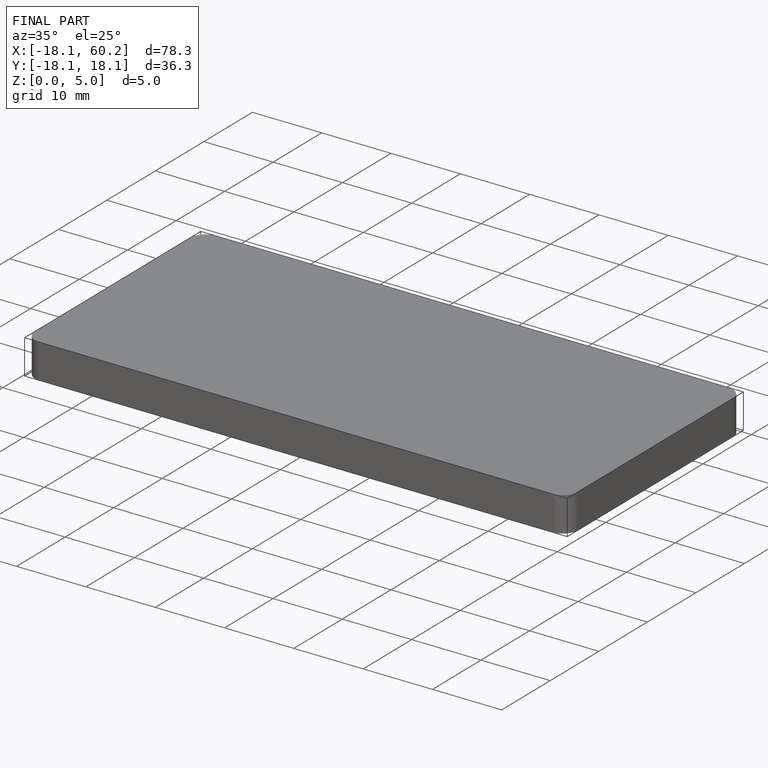
[diagram: finished part — iso view with bounding-box wireframe]
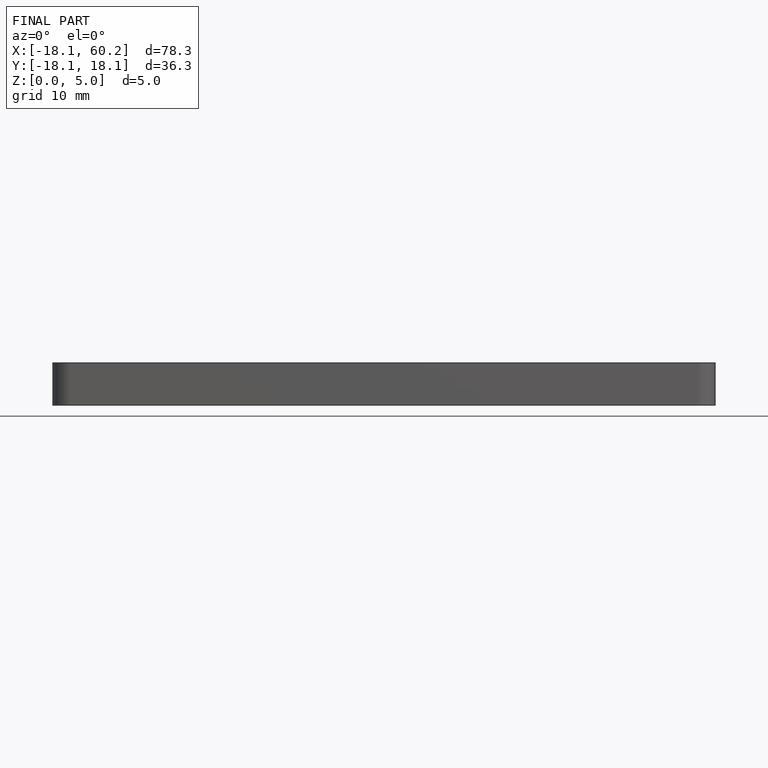
[diagram: finished part — front view with bounding-box wireframe]
